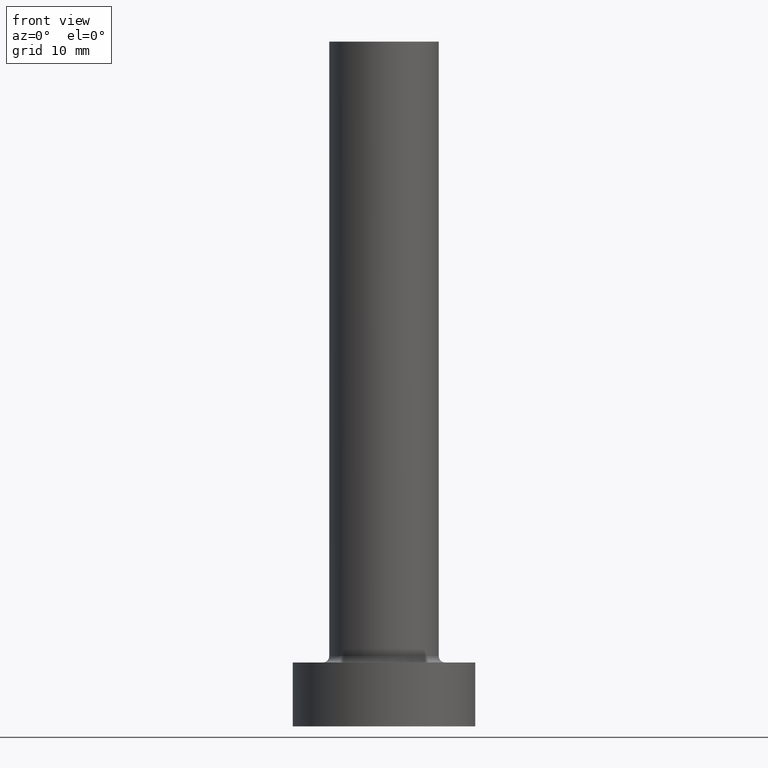
[diagram: clean part render]
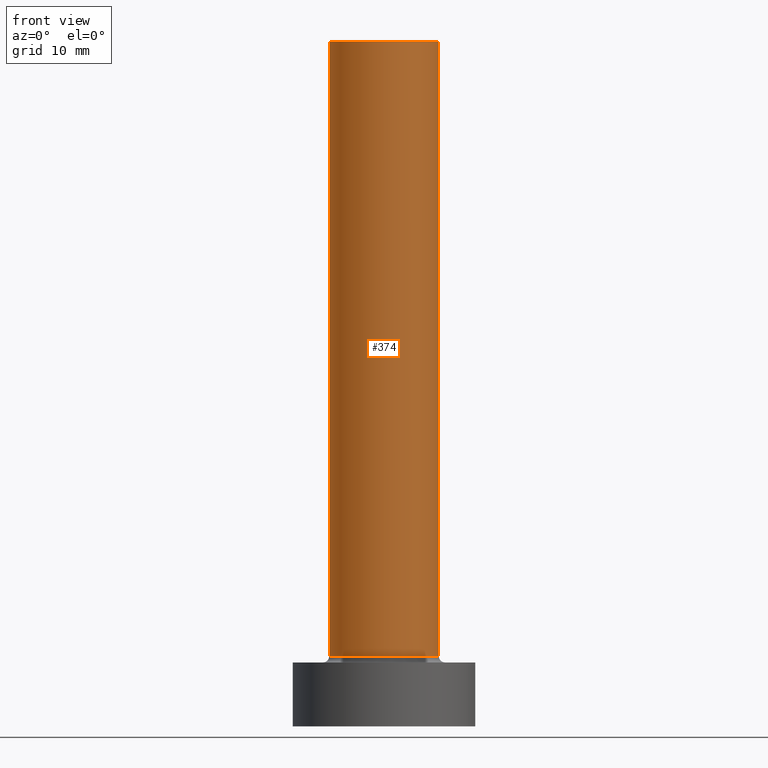
[diagram: same view with one face highlighted and labeled with its STEP entity id]
A machine part, front view. The second image highlights one B-rep face of the part: STEP entity #374.
In plain terms, the highlighted cylindrical surface (partial cylindrical patch) has radius 6 mm, axis along (-0, -0, -1).
Its self-contained STEP definition (entity closure, byte-faithful):
#3 = VERTEX_POINT ( 'NONE', #38 ) ;
#4 = DIRECTION ( 'NONE',  ( 0.000000000000000000, 0.000000000000000000, 1.000000000000000000 ) ) ;
#14 = FACE_OUTER_BOUND ( 'NONE', #211, .T. ) ;
#17 = DIRECTION ( 'NONE',  ( -0.000000000000000000, -0.000000000000000000, -1.000000000000000000 ) ) ;
#19 = ORIENTED_EDGE ( 'NONE', *, *, #426, .F. ) ;
#21 = DIRECTION ( 'NONE',  ( -1.000000000000000000, 0.000000000000000000, 0.000000000000000000 ) ) ;
#38 = CARTESIAN_POINT ( 'NONE',  ( -6.000000000000000888, 0.000000000000000000, 7.699999999999998401 ) ) ;
#50 = EDGE_CURVE ( 'NONE', #3, #391, #178, .T. ) ;
#65 = ORIENTED_EDGE ( 'NONE', *, *, #50, .T. ) ;
#70 = ORIENTED_EDGE ( 'NONE', *, *, #235, .F. ) ;
#87 = VECTOR ( 'NONE', #17, 1000.000000000000000 ) ;
#94 = VECTOR ( 'NONE', #98, 1000.000000000000000 ) ;
#98 = DIRECTION ( 'NONE',  ( -0.000000000000000000, -0.000000000000000000, -1.000000000000000000 ) ) ;
#116 = CARTESIAN_POINT ( 'NONE',  ( 0.000000000000000000, 0.000000000000000000, 75.00000000000001421 ) ) ;
#117 = EDGE_CURVE ( 'NONE', #338, #3, #139, .T. ) ;
#128 = CARTESIAN_POINT ( 'NONE',  ( 0.000000000000000000, 0.000000000000000000, 75.00000000000001421 ) ) ;
#139 = LINE ( 'NONE', #417, #94 ) ;
#178 = CIRCLE ( 'NONE', #438, 6.000000000000000888 ) ;
#196 = DIRECTION ( 'NONE',  ( -0.000000000000000000, -0.000000000000000000, -1.000000000000000000 ) ) ;
#211 = EDGE_LOOP ( 'NONE', ( #19, #70, #320, #65 ) ) ;
#228 = LINE ( 'NONE', #334, #87 ) ;
#233 = CARTESIAN_POINT ( 'NONE',  ( 6.000000000000000888, 7.347880794884120722E-16, 75.00000000000001421 ) ) ;
#235 = EDGE_CURVE ( 'NONE', #338, #430, #413, .T. ) ;
#251 = DIRECTION ( 'NONE',  ( 1.000000000000000000, 0.000000000000000000, 0.000000000000000000 ) ) ;
#258 = DIRECTION ( 'NONE',  ( 1.000000000000000000, 0.000000000000000000, 0.000000000000000000 ) ) ;
#264 = AXIS2_PLACEMENT_3D ( 'NONE', #128, #196, #21 ) ;
#269 = CARTESIAN_POINT ( 'NONE',  ( 6.000000000000000888, 7.347880794884120722E-16, 7.699999999999998401 ) ) ;
#286 = DIRECTION ( 'NONE',  ( 0.000000000000000000, 0.000000000000000000, 1.000000000000000000 ) ) ;
#317 = CARTESIAN_POINT ( 'NONE',  ( 0.000000000000000000, 0.000000000000000000, 7.699999999999998401 ) ) ;
#320 = ORIENTED_EDGE ( 'NONE', *, *, #117, .T. ) ;
#326 = AXIS2_PLACEMENT_3D ( 'NONE', #116, #4, #258 ) ;
#334 = CARTESIAN_POINT ( 'NONE',  ( 6.000000000000000888, 7.347880794884120722E-16, 75.00000000000001421 ) ) ;
#336 = CYLINDRICAL_SURFACE ( 'NONE', #264, 6.000000000000000888 ) ;
#338 = VERTEX_POINT ( 'NONE', #444 ) ;
#374 = ADVANCED_FACE ( 'NONE', ( #14 ), #336, .T. ) ;
#391 = VERTEX_POINT ( 'NONE', #269 ) ;
#413 = CIRCLE ( 'NONE', #326, 6.000000000000000888 ) ;
#417 = CARTESIAN_POINT ( 'NONE',  ( -6.000000000000000888, 0.000000000000000000, 75.00000000000001421 ) ) ;
#426 = EDGE_CURVE ( 'NONE', #430, #391, #228, .T. ) ;
#430 = VERTEX_POINT ( 'NONE', #233 ) ;
#438 = AXIS2_PLACEMENT_3D ( 'NONE', #317, #286, #251 ) ;
#444 = CARTESIAN_POINT ( 'NONE',  ( -6.000000000000000888, 0.000000000000000000, 75.00000000000001421 ) ) ;